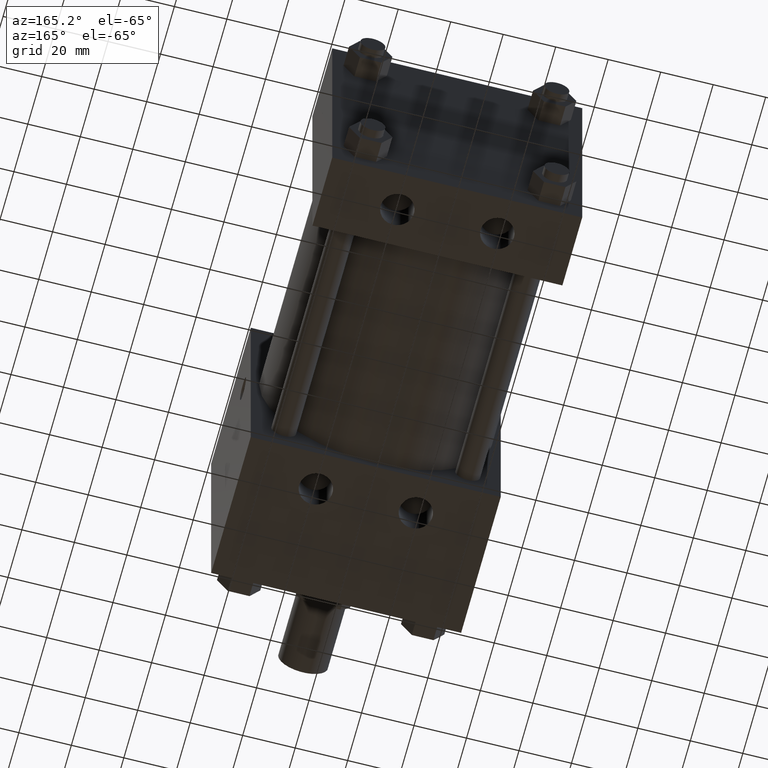
[diagram: clean part render]
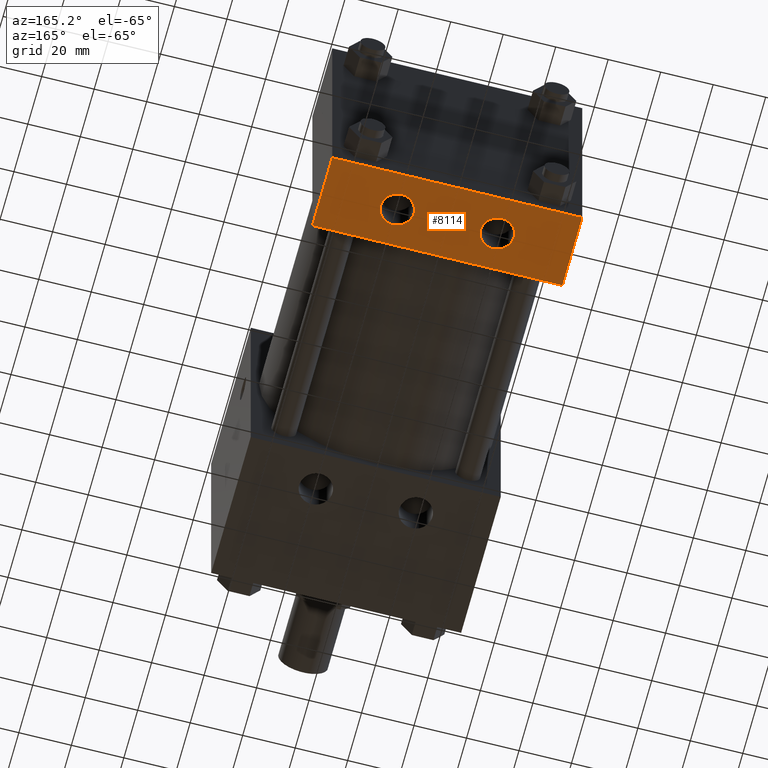
[diagram: same view with one face highlighted and labeled with its STEP entity id]
A machine part, auxiliary view. The second image highlights one B-rep face of the part: STEP entity #8114.
In plain terms, the highlighted planar face has unit normal (0, 0, 1).
Its self-contained STEP definition (entity closure, byte-faithful):
#4182=EDGE_CURVE('',#4187,#4188,#4183,.T.);
#4183=LINE('',#4184,#4185);
#4184=CARTESIAN_POINT('',(4.762500000E+001,1.651000000E+002,-4.762500000E+001));
#4185=VECTOR('',#4186,1.0E+000);
#4186=DIRECTION('',(-1.0E+000,0.0E+000,0.0E+000));
#4187=VERTEX_POINT('',#4189);
#4188=VERTEX_POINT('',#4190);
#4189=CARTESIAN_POINT('',(4.762500000E+001,1.651000000E+002,-4.762500000E+001));
#4190=CARTESIAN_POINT('',(-4.762500000E+001,1.651000000E+002,-4.762500000E+001));
#4432=VERTEX_POINT('',#4434);
#4434=CARTESIAN_POINT('',(4.762500000E+001,1.936750000E+002,-4.762500000E+001));
#4436=EDGE_CURVE('',#4432,#4441,#4437,.T.);
#4437=LINE('',#4438,#4439);
#4438=CARTESIAN_POINT('',(4.762500000E+001,1.936750000E+002,-4.762500000E+001));
#4439=VECTOR('',#4440,1.0E+000);
#4440=DIRECTION('',(-1.0E+000,0.0E+000,0.0E+000));
#4441=VERTEX_POINT('',#4442);
#4442=CARTESIAN_POINT('',(-4.762500000E+001,1.936750000E+002,-4.762500000E+001));
#4529=EDGE_CURVE('',#4535,#4535,#4530,.F.);
#4530=CIRCLE('',#4531,6.350000000E+000);
#4531=AXIS2_PLACEMENT_3D('',#4532,#4533,#4534);
#4532=CARTESIAN_POINT('',(-1.905000000E+001,1.793875000E+002,-4.762500000E+001));
#4533=DIRECTION('',(0.0E+000,0.0E+000,1.0E+000));
#4534=DIRECTION('',(1.0E+000,0.0E+000,0.0E+000));
#4535=VERTEX_POINT('',#4536);
#4536=CARTESIAN_POINT('',(-2.540000000E+001,1.793875000E+002,-4.762500000E+001));
#4543=FACE_OUTER_BOUND('',#4546,.T.);
#4544=FACE_BOUND('',#4547,.T.);
#4545=FACE_BOUND('',#4548,.T.);
#4546=EDGE_LOOP('',(#4549));
#4547=EDGE_LOOP('',(#4550));
#4548=EDGE_LOOP('',(#4559,#4560,#4561,#4562));
#4549=ORIENTED_EDGE('',*,*,#4529,.F.);
#4550=ORIENTED_EDGE('',*,*,#4551,.F.);
#4551=EDGE_CURVE('',#4557,#4557,#4552,.F.);
#4552=CIRCLE('',#4553,6.350000000E+000);
#4553=AXIS2_PLACEMENT_3D('',#4554,#4555,#4556);
#4554=CARTESIAN_POINT('',(1.905000000E+001,1.793875000E+002,-4.762500000E+001));
#4555=DIRECTION('',(0.0E+000,0.0E+000,1.0E+000));
#4556=DIRECTION('',(1.0E+000,0.0E+000,0.0E+000));
#4557=VERTEX_POINT('',#4558);
#4558=CARTESIAN_POINT('',(2.540000000E+001,1.793875000E+002,-4.762500000E+001));
#4559=ORIENTED_EDGE('',*,*,#4563,.T.);
#4560=ORIENTED_EDGE('',*,*,#4182,.T.);
#4561=ORIENTED_EDGE('',*,*,#4568,.T.);
#4562=ORIENTED_EDGE('',*,*,#4436,.F.);
#4563=EDGE_CURVE('',#4432,#4187,#4564,.T.);
#4564=LINE('',#4565,#4566);
#4565=CARTESIAN_POINT('',(4.762500000E+001,1.936750000E+002,-4.762500000E+001));
#4566=VECTOR('',#4567,1.0E+000);
#4567=DIRECTION('',(0.0E+000,-1.0E+000,0.0E+000));
#4568=EDGE_CURVE('',#4188,#4441,#4569,.T.);
#4569=LINE('',#4570,#4571);
#4570=CARTESIAN_POINT('',(-4.762500000E+001,1.936750000E+002,-4.762500000E+001));
#4571=VECTOR('',#4572,1.0E+000);
#4572=DIRECTION('',(0.0E+000,1.0E+000,0.0E+000));
#4573=PLANE('',#4574);
#4574=AXIS2_PLACEMENT_3D('',#4575,#4576,#4577);
#4575=CARTESIAN_POINT('',(4.762500000E+001,1.936750000E+002,-4.762500000E+001));
#4576=DIRECTION('',(0.0E+000,0.0E+000,1.0E+000));
#4577=DIRECTION('',(1.0E+000,0.0E+000,0.0E+000));
#8114=ADVANCED_FACE('',(#4543,#4544,#4545),#4573,.F.);